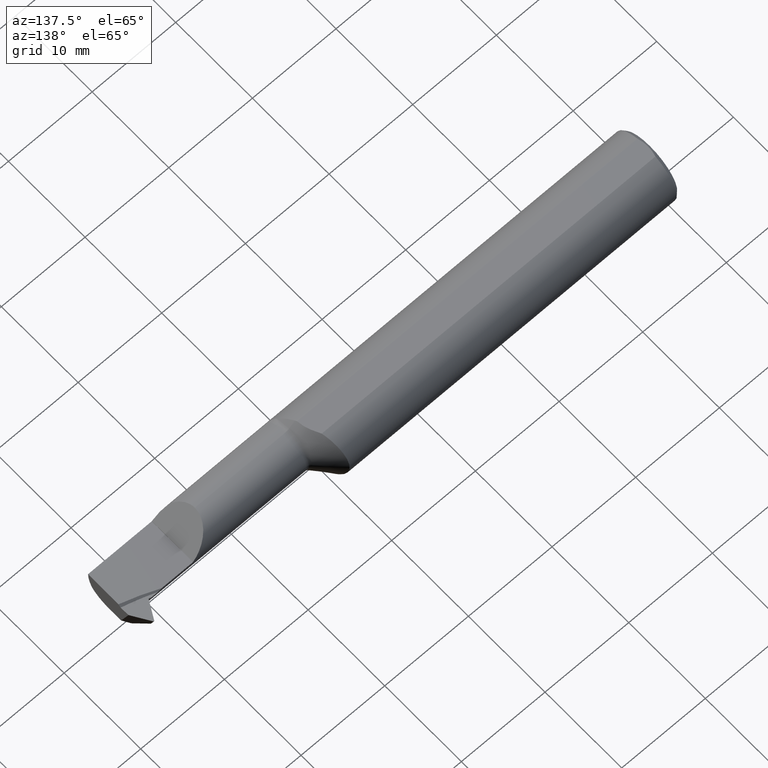
[diagram: clean part render]
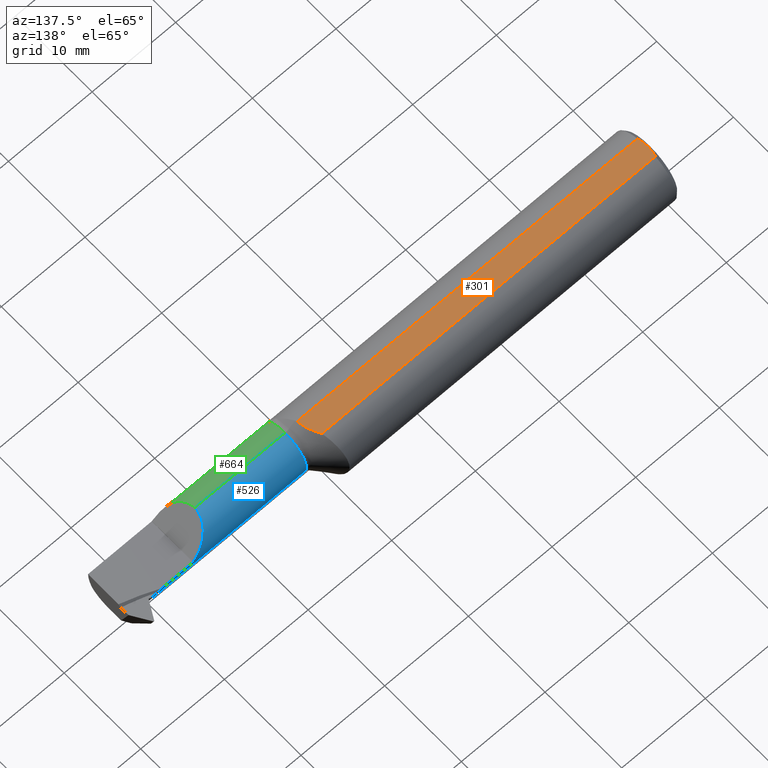
[diagram: same view with three faces highlighted in distinct colors, each labeled with its STEP entity id]
A machine part, auxiliary view with three faces highlighted in distinct colors.
Their STEP definitions:

[orange] entity #301 — the highlighted planar face has unit normal (-0, 0, -1).
#15 = LINE ( 'NONE', #335, #493 ) ;
#47 = CARTESIAN_POINT ( 'NONE',  ( 1.585731319860130828, 0.04622120725381386602, 0.1490999999999999270 ) ) ;
#49 = ORIENTED_EDGE ( 'NONE', *, *, #589, .T. ) ;
#68 = CARTESIAN_POINT ( 'NONE',  ( 0.01278288443379417376, 0.03873348115474874176, 0.1490999999999999270 ) ) ;
#79 = CARTESIAN_POINT ( 'NONE',  ( 0.01499999999999393485, -0.04622120725382292822, 0.1490999999999999270 ) ) ;
#80 = CARTESIAN_POINT ( 'NONE',  ( 1.611455283410027750, -0.01367641444778827133, 0.1490999999999999548 ) ) ;
#84 = CARTESIAN_POINT ( 'NONE',  ( 0.007999999999999125866, 4.455076319782333311E-17, 0.1490999999999999270 ) ) ;
#104 = B_SPLINE_CURVE_WITH_KNOTS ( 'NONE', 3,
 ( #1035, #559, #896, #884, #814, #79 ),
 .UNSPECIFIED., .F., .F.,
 ( 4, 2, 4 ),
 ( 0.004897592659350309685, 0.005485910453056662590, 0.006074228246763015496 ),
 .UNSPECIFIED. ) ;
#107 = ORIENTED_EDGE ( 'NONE', *, *, #296, .F. ) ;
#109 = ORIENTED_EDGE ( 'NONE', *, *, #171, .T. ) ;
#124 = VECTOR ( 'NONE', #621, 39.37007874015748143 ) ;
#149 = CARTESIAN_POINT ( 'NONE',  ( 0.007999999999999125866, 4.455076319782333311E-17, 0.1490999999999999270 ) ) ;
#153 = CARTESIAN_POINT ( 'NONE',  ( 1.593705498961929479, 0.03203370612900889591, 0.1490999999999999270 ) ) ;
#154 = VERTEX_POINT ( 'NONE', #802 ) ;
#159 = EDGE_CURVE ( 'NONE', #442, #481, #569, .T. ) ;
#167 = CARTESIAN_POINT ( 'NONE',  ( 1.609095431277676846, -0.005703213165482891658, 0.1490999999999999548 ) ) ;
#171 = EDGE_CURVE ( 'NONE', #154, #586, #712, .T. ) ;
#230 = CARTESIAN_POINT ( 'NONE',  ( 1.585731319860130828, 0.04622120725381386602, 0.1490999999999999270 ) ) ;
#235 = CARTESIAN_POINT ( 'NONE',  ( 0.01499999999999970281, 0.04622120725381385214, 0.1490999999999999270 ) ) ;
#296 = EDGE_CURVE ( 'NONE', #481, #506, #15, .T. ) ;
#301 = ADVANCED_FACE ( 'NONE', ( #439 ), #751, .F. ) ;
#330 = CARTESIAN_POINT ( 'NONE',  ( 0.01102802999246689508, 0.03114634426099329584, 0.1490999999999999825 ) ) ;
#335 = CARTESIAN_POINT ( 'NONE',  ( 2.500000000000000000, -0.04622120725381385214, 0.1490999999999999270 ) ) ;
#389 = CARTESIAN_POINT ( 'NONE',  ( 0.007999999999999469341, 0.007838945166257094838, 0.1490999999999999548 ) ) ;
#430 = CARTESIAN_POINT ( 'NONE',  ( 0.000000000000000000, 0.1749999999999999889, 0.1490999999999999270 ) ) ;
#439 = FACE_OUTER_BOUND ( 'NONE', #453, .T. ) ;
#442 = VERTEX_POINT ( 'NONE', #47 ) ;
#451 = LINE ( 'NONE', #785, #124 ) ;
#453 = EDGE_LOOP ( 'NONE', ( #565, #531, #109, #49, #107 ) ) ;
#456 = CARTESIAN_POINT ( 'NONE',  ( 1.616635871238674804, -0.04622120725381384521, 0.1490999999999999270 ) ) ;
#470 = CARTESIAN_POINT ( 'NONE',  ( 1.616149622418284082, -0.03804125154417743043, 0.1490999999999999548 ) ) ;
#473 = CARTESIAN_POINT ( 'NONE',  ( 0.01499999999999393485, -0.04622120725382292822, 0.1490999999999999270 ) ) ;
#475 = EDGE_CURVE ( 'NONE', #154, #442, #451, .T. ) ;
#481 = VERTEX_POINT ( 'NONE', #456 ) ;
#493 = VECTOR ( 'NONE', #842, 39.37007874015748143 ) ;
#506 = VERTEX_POINT ( 'NONE', #473 ) ;
#531 = ORIENTED_EDGE ( 'NONE', *, *, #475, .F. ) ;
#559 = CARTESIAN_POINT ( 'NONE',  ( 0.007999999999999455463, -0.007830403603065291818, 0.1490999999999999270 ) ) ;
#565 = ORIENTED_EDGE ( 'NONE', *, *, #159, .F. ) ;
#569 = B_SPLINE_CURVE_WITH_KNOTS ( 'NONE', 3,
 ( #230, #153, #975, #167, #80, #643, #470, #1046 ),
 .UNSPECIFIED., .F., .F.,
 ( 4, 2, 2, 4 ),
 ( 0.004170257919704614680, 0.005419282688077418052, 0.006043795072263819304, 0.006668307456450221424 ),
 .UNSPECIFIED. ) ;
#586 = VERTEX_POINT ( 'NONE', #84 ) ;
#589 = EDGE_CURVE ( 'NONE', #586, #506, #104, .T. ) ;
#592 = DIRECTION ( 'NONE',  ( -0.000000000000000000, 0.000000000000000000, -1.000000000000000000 ) ) ;
#621 = DIRECTION ( 'NONE',  ( 1.000000000000000000, 0.000000000000000000, 0.000000000000000000 ) ) ;
#643 = CARTESIAN_POINT ( 'NONE',  ( 1.614992327536548755, -0.02989759620680064456, 0.1490999999999999270 ) ) ;
#712 = B_SPLINE_CURVE_WITH_KNOTS ( 'NONE', 3,
 ( #235, #68, #330, #746, #389, #149 ),
 .UNSPECIFIED., .F., .F.,
 ( 4, 2, 4 ),
 ( 0.003719673573955530402, 0.004308633116652920043, 0.004897592659350309685 ),
 .UNSPECIFIED. ) ;
#746 = CARTESIAN_POINT ( 'NONE',  ( 0.008634235838431109783, 0.01573208929399682460, 0.1490999999999999270 ) ) ;
#751 = PLANE ( 'NONE',  #891 ) ;
#785 = CARTESIAN_POINT ( 'NONE',  ( 2.500000000000000000, 0.04622120725381385214, 0.1490999999999999270 ) ) ;
#802 = CARTESIAN_POINT ( 'NONE',  ( 0.01499999999999970281, 0.04622120725381385214, 0.1490999999999999270 ) ) ;
#814 = CARTESIAN_POINT ( 'NONE',  ( 0.01278044421364358738, -0.03872523995146043979, 0.1490999999999999548 ) ) ;
#842 = DIRECTION ( 'NONE',  ( -1.000000000000000000, -0.000000000000000000, -0.000000000000000000 ) ) ;
#884 = CARTESIAN_POINT ( 'NONE',  ( 0.01100253626952274640, -0.03102299601567367823, 0.1490999999999999270 ) ) ;
#891 = AXIS2_PLACEMENT_3D ( 'NONE', #430, #592, #994 ) ;
#896 = CARTESIAN_POINT ( 'NONE',  ( 0.008620033643014864480, -0.01559914152229296101, 0.1490999999999999825 ) ) ;
#975 = CARTESIAN_POINT ( 'NONE',  ( 1.600825235768599697, 0.01741984689341644077, 0.1490999999999998993 ) ) ;
#994 = DIRECTION ( 'NONE',  ( -1.000000000000000000, 0.000000000000000000, 0.000000000000000000 ) ) ;
#1035 = CARTESIAN_POINT ( 'NONE',  ( 0.007999999999999125866, 4.455076319782333311E-17, 0.1490999999999999270 ) ) ;
#1046 = CARTESIAN_POINT ( 'NONE',  ( 1.616635871238674804, -0.04622120725381384521, 0.1490999999999999270 ) ) ;

[blue] entity #526 — the highlighted cylindrical surface (edge-blend (fillet) strip) has radius 2.8194 mm, axis along (-1, -0, -0).
#1 = B_SPLINE_CURVE_WITH_KNOTS ( 'NONE', 3,
 ( #672, #110, #905, #284 ),
 .UNSPECIFIED., .F., .F.,
 ( 4, 4 ),
 ( 0.01329294191622623286, 0.01373583739923346821 ),
 .UNSPECIFIED. ) ;
#14 = CARTESIAN_POINT ( 'NONE',  ( 1.665355339059327200, -0.05509999999999982967, 0.1110000000000000292 ) ) ;
#23 = VECTOR ( 'NONE', #943, 39.37007874015748143 ) ;
#26 = CARTESIAN_POINT ( 'NONE',  ( 2.200000000000000178, 0.05590000000000017871, -6.429183357567478880E-17 ) ) ;
#35 = CARTESIAN_POINT ( 'NONE',  ( 2.200000000000000178, 0.05589635129138274122, 0.0009000000000000527760 ) ) ;
#57 = CARTESIAN_POINT ( 'NONE',  ( 2.135397084422194780, 0.05537252664900876170, 0.06550291557780467400 ) ) ;
#83 = EDGE_CURVE ( 'NONE', #837, #92, #524, .T. ) ;
#92 = VERTEX_POINT ( 'NONE', #121 ) ;
#110 = CARTESIAN_POINT ( 'NONE',  ( 2.354118992116098763, 0.05590000000000038688, -0.002306557227393740434 ) ) ;
#116 = EDGE_LOOP ( 'NONE', ( #263, #145, #676, #286, #466, #319, #511, #421, #236, #700, #962 ) ) ;
#121 = CARTESIAN_POINT ( 'NONE',  ( 2.392011247420416264, 0.04669892047817528202, -0.04424906540796296611 ) ) ;
#130 = CARTESIAN_POINT ( 'NONE',  ( 2.200000000000000178, -0.05509999999999982967, 0.000000000000000000 ) ) ;
#135 = CARTESIAN_POINT ( 'NONE',  ( 1.655000000000000249, 0.05569962540964207287, -0.006666559013692298016 ) ) ;
#141 = AXIS2_PLACEMENT_3D ( 'NONE', #646, #245, #969 ) ;
#145 = ORIENTED_EDGE ( 'NONE', *, *, #670, .T. ) ;
#173 = VECTOR ( 'NONE', #755, 39.37007874015748143 ) ;
#205 = CARTESIAN_POINT ( 'NONE',  ( 1.665355339059327200, -0.05509999999999982967, 0.000000000000000000 ) ) ;
#214 =( BOUNDED_CURVE ( )  B_SPLINE_CURVE ( 3, ( #715, #238, #229, #800 ),
 .UNSPECIFIED., .F., .F. ) 
 B_SPLINE_CURVE_WITH_KNOTS ( ( 4, 4 ),
 ( 3.324852225049197862, 4.485614858200198896 ),
 .UNSPECIFIED. ) 
 CURVE ( )  GEOMETRIC_REPRESENTATION_ITEM ( )  RATIONAL_B_SPLINE_CURVE ( ( 1.000000000000000000, 0.8908357456650484174, 0.8908357456650484174, 1.000000000000000000 ) ) 
 REPRESENTATION_ITEM ( '' )  );
#229 = CARTESIAN_POINT ( 'NONE',  ( 2.415503602610843625, 0.02854094621532835691, -0.08602310427151964312 ) ) ;
#236 = ORIENTED_EDGE ( 'NONE', *, *, #463, .T. ) ;
#238 = CARTESIAN_POINT ( 'NONE',  ( 2.418777902616022768, -0.009550221160754634661, -0.1110000000000000570 ) ) ;
#243 = VERTEX_POINT ( 'NONE', #554 ) ;
#245 = DIRECTION ( 'NONE',  ( -1.000000000000000000, -0.000000000000000000, -0.000000000000000000 ) ) ;
#256 = CIRCLE ( 'NONE', #856, 0.1110000000000000292 ) ;
#263 = ORIENTED_EDGE ( 'NONE', *, *, #570, .F. ) ;
#277 = CARTESIAN_POINT ( 'NONE',  ( 2.089899999999998759, -0.05509999999999982967, 0.1110000000000000292 ) ) ;
#284 = CARTESIAN_POINT ( 'NONE',  ( 2.364870255512066421, 0.05569962540964205899, -0.006666559013692374344 ) ) ;
#286 = ORIENTED_EDGE ( 'NONE', *, *, #851, .F. ) ;
#288 = CARTESIAN_POINT ( 'NONE',  ( 2.410890140113939317, 0.04669892047817530978, -0.04424906540796293836 ) ) ;
#294 = DIRECTION ( 'NONE',  ( 1.000000000000000000, 0.000000000000000000, 0.000000000000000000 ) ) ;
#297 = VERTEX_POINT ( 'NONE', #35 ) ;
#300 = DIRECTION ( 'NONE',  ( -1.000000000000000000, -0.000000000000000000, -0.000000000000000000 ) ) ;
#303 = LINE ( 'NONE', #537, #791 ) ;
#319 = ORIENTED_EDGE ( 'NONE', *, *, #420, .T. ) ;
#327 = VERTEX_POINT ( 'NONE', #26 ) ;
#343 = VERTEX_POINT ( 'NONE', #533 ) ;
#350 = EDGE_CURVE ( 'NONE', #243, #718, #256, .T. ) ;
#354 = DIRECTION ( 'NONE',  ( 0.000000000000000000, 0.000000000000000000, 1.000000000000000000 ) ) ;
#363 = EDGE_CURVE ( 'NONE', #327, #437, #779, .T. ) ;
#370 = DIRECTION ( 'NONE',  ( 1.000000000000000000, 0.000000000000000000, 0.000000000000000000 ) ) ;
#377 = CARTESIAN_POINT ( 'NONE',  ( 2.398976753261663486, 0.05569962540964209369, -0.006666559013692291077 ) ) ;
#394 = VECTOR ( 'NONE', #294, 39.37007874015748143 ) ;
#396 =( BOUNDED_CURVE ( )  B_SPLINE_CURVE ( 3, ( #277, #539, #57, #698 ),
 .UNSPECIFIED., .F., .F. ) 
 B_SPLINE_CURVE_WITH_KNOTS ( ( 4, 4 ),
 ( 0.000000000000000000, 1.562688129844407303 ),
 .UNSPECIFIED. ) 
 CURVE ( )  GEOMETRIC_REPRESENTATION_ITEM ( )  RATIONAL_B_SPLINE_CURVE ( ( 1.000000000000000000, 0.8066450953084864928, 0.8066450953084864928, 1.000000000000000000 ) ) 
 REPRESENTATION_ITEM ( '' )  );
#405 = FACE_OUTER_BOUND ( 'NONE', #116, .T. ) ;
#408 = CARTESIAN_POINT ( 'NONE',  ( 2.089899999999998759, -0.05509999999999982967, 0.1110000000000000292 ) ) ;
#413 = EDGE_CURVE ( 'NONE', #982, #297, #396, .T. ) ;
#420 = EDGE_CURVE ( 'NONE', #297, #327, #494, .T. ) ;
#421 = ORIENTED_EDGE ( 'NONE', *, *, #657, .T. ) ;
#435 = VERTEX_POINT ( 'NONE', #377 ) ;
#437 = VERTEX_POINT ( 'NONE', #858 ) ;
#463 = EDGE_CURVE ( 'NONE', #343, #435, #868, .T. ) ;
#466 = ORIENTED_EDGE ( 'NONE', *, *, #413, .T. ) ;
#479 = CARTESIAN_POINT ( 'NONE',  ( 2.396569062922643045, 0.05491800274302387208, -0.01965729358832224785 ) ) ;
#483 = CARTESIAN_POINT ( 'NONE',  ( 2.392011247420416264, 0.04669892047817528202, -0.04424906540796296611 ) ) ;
#494 = CIRCLE ( 'NONE', #874, 0.1110000000000000292 ) ;
#499 = VERTEX_POINT ( 'NONE', #1045 ) ;
#501 = CARTESIAN_POINT ( 'NONE',  ( 1.655000000000000249, -0.05509999999999980885, -0.1110000000000000292 ) ) ;
#511 = ORIENTED_EDGE ( 'NONE', *, *, #363, .T. ) ;
#524 = LINE ( 'NONE', #1026, #987 ) ;
#526 = ADVANCED_FACE ( 'NONE', ( #405 ), #879, .T. ) ;
#533 = CARTESIAN_POINT ( 'NONE',  ( 2.364870255512066421, 0.05569962540964205899, -0.006666559013692374344 ) ) ;
#537 = CARTESIAN_POINT ( 'NONE',  ( 1.655000000000000249, -0.05509999999999982967, 0.1110000000000000292 ) ) ;
#539 = CARTESIAN_POINT ( 'NONE',  ( 2.089899999999998759, 0.009505039226123366408, 0.1110000000000000431 ) ) ;
#554 = CARTESIAN_POINT ( 'NONE',  ( 1.665355339059327200, -0.05509999999999980885, -0.1110000000000000292 ) ) ;
#570 = EDGE_CURVE ( 'NONE', #499, #837, #214, .T. ) ;
#584 = EDGE_CURVE ( 'NONE', #92, #435, #916, .T. ) ;
#614 = DIRECTION ( 'NONE',  ( 0.000000000000000000, 0.000000000000000000, 1.000000000000000000 ) ) ;
#626 = DIRECTION ( 'NONE',  ( -1.000000000000000000, -0.000000000000000000, -0.000000000000000000 ) ) ;
#646 = CARTESIAN_POINT ( 'NONE',  ( 1.655000000000000249, -0.05509999999999982967, 0.000000000000000000 ) ) ;
#657 = EDGE_CURVE ( 'NONE', #437, #343, #1, .T. ) ;
#670 = EDGE_CURVE ( 'NONE', #499, #243, #840, .T. ) ;
#672 = CARTESIAN_POINT ( 'NONE',  ( 2.348800091824888359, 0.05590000000000024810, 2.743838138456355670E-16 ) ) ;
#676 = ORIENTED_EDGE ( 'NONE', *, *, #350, .T. ) ;
#698 = CARTESIAN_POINT ( 'NONE',  ( 2.200000000000000178, 0.05589635129138274122, 0.0009000000000000527760 ) ) ;
#700 = ORIENTED_EDGE ( 'NONE', *, *, #584, .F. ) ;
#715 = CARTESIAN_POINT ( 'NONE',  ( 2.419640730573871856, -0.05509999999999984355, -0.1109999999999999737 ) ) ;
#718 = VERTEX_POINT ( 'NONE', #14 ) ;
#755 = DIRECTION ( 'NONE',  ( -1.000000000000000000, -0.000000000000000000, -0.000000000000000000 ) ) ;
#779 = LINE ( 'NONE', #936, #394 ) ;
#791 = VECTOR ( 'NONE', #959, 39.37007874015748143 ) ;
#800 = CARTESIAN_POINT ( 'NONE',  ( 2.410890140113939317, 0.04669892047817530978, -0.04424906540796293836 ) ) ;
#818 = CARTESIAN_POINT ( 'NONE',  ( 2.398976753261663486, 0.05569962540964209369, -0.006666559013692291077 ) ) ;
#837 = VERTEX_POINT ( 'NONE', #288 ) ;
#840 = LINE ( 'NONE', #501, #173 ) ;
#851 = EDGE_CURVE ( 'NONE', #982, #718, #303, .T. ) ;
#856 = AXIS2_PLACEMENT_3D ( 'NONE', #205, #370, #614 ) ;
#858 = CARTESIAN_POINT ( 'NONE',  ( 2.348800091824888359, 0.05590000000000024810, 2.743838138456355670E-16 ) ) ;
#868 = LINE ( 'NONE', #135, #23 ) ;
#874 = AXIS2_PLACEMENT_3D ( 'NONE', #130, #626, #354 ) ;
#879 = CYLINDRICAL_SURFACE ( 'NONE', #141, 0.1110000000000000292 ) ;
#889 = CARTESIAN_POINT ( 'NONE',  ( 2.394223351265098998, 0.05188691512856393601, -0.03231362112260029174 ) ) ;
#905 = CARTESIAN_POINT ( 'NONE',  ( 2.359477086826997194, 0.05582843386859366597, -0.004525735093569007057 ) ) ;
#916 =( BOUNDED_CURVE ( )  B_SPLINE_CURVE ( 3, ( #483, #889, #479, #818 ),
 .UNSPECIFIED., .F., .F. ) 
 B_SPLINE_CURVE_WITH_KNOTS ( ( 4, 4 ),
 ( 1.160762633150994816, 1.510701071380387894 ),
 .UNSPECIFIED. ) 
 CURVE ( )  GEOMETRIC_REPRESENTATION_ITEM ( )  RATIONAL_B_SPLINE_CURVE ( ( 1.000000000000000000, 0.9898212650940335644, 0.9898212650940335644, 1.000000000000000000 ) ) 
 REPRESENTATION_ITEM ( '' )  );
#936 = CARTESIAN_POINT ( 'NONE',  ( 1.655000000000000249, 0.05590000000000019953, -6.429183357567480113E-17 ) ) ;
#943 = DIRECTION ( 'NONE',  ( 1.000000000000000000, 0.000000000000000000, 0.000000000000000000 ) ) ;
#959 = DIRECTION ( 'NONE',  ( -1.000000000000000000, -0.000000000000000000, -0.000000000000000000 ) ) ;
#962 = ORIENTED_EDGE ( 'NONE', *, *, #83, .F. ) ;
#969 = DIRECTION ( 'NONE',  ( 0.000000000000000000, 0.000000000000000000, 1.000000000000000000 ) ) ;
#982 = VERTEX_POINT ( 'NONE', #408 ) ;
#987 = VECTOR ( 'NONE', #300, 39.37007874015748143 ) ;
#1026 = CARTESIAN_POINT ( 'NONE',  ( 1.655000000000000249, 0.04669892047817530284, -0.04424906540796293836 ) ) ;
#1045 = CARTESIAN_POINT ( 'NONE',  ( 2.419640730573871856, -0.05509999999999984355, -0.1109999999999999737 ) ) ;

[green] entity #664 — the highlighted cylindrical surface (edge-blend (fillet) strip) has radius 2.8194 mm, axis along (-1, -0, -0).
#4 = CARTESIAN_POINT ( 'NONE',  ( 1.665355339059327200, -0.05509999999999982967, 0.000000000000000000 ) ) ;
#5 = CIRCLE ( 'NONE', #741, 0.1110000000000000292 ) ;
#14 = CARTESIAN_POINT ( 'NONE',  ( 1.665355339059327200, -0.05509999999999982967, 0.1110000000000000292 ) ) ;
#29 = VERTEX_POINT ( 'NONE', #610 ) ;
#46 = VERTEX_POINT ( 'NONE', #143 ) ;
#91 = AXIS2_PLACEMENT_3D ( 'NONE', #764, #94, #835 ) ;
#94 = DIRECTION ( 'NONE',  ( -1.000000000000000000, -0.000000000000000000, -0.000000000000000000 ) ) ;
#132 = EDGE_CURVE ( 'NONE', #718, #29, #5, .T. ) ;
#143 = CARTESIAN_POINT ( 'NONE',  ( 2.125827139386172515, -0.1368622504537206908, 0.07507286061382652254 ) ) ;
#160 = ORIENTED_EDGE ( 'NONE', *, *, #851, .T. ) ;
#161 = DIRECTION ( 'NONE',  ( 1.000000000000000000, 0.000000000000000000, 0.000000000000000000 ) ) ;
#278 = ORIENTED_EDGE ( 'NONE', *, *, #132, .T. ) ;
#303 = LINE ( 'NONE', #537, #791 ) ;
#331 = EDGE_CURVE ( 'NONE', #46, #982, #366, .T. ) ;
#339 = EDGE_LOOP ( 'NONE', ( #594, #160, #278, #607 ) ) ;
#341 = CARTESIAN_POINT ( 'NONE',  ( 2.125827139386172515, -0.1368622504537206908, 0.07507286061382652254 ) ) ;
#366 =( BOUNDED_CURVE ( )  B_SPLINE_CURVE ( 3, ( #341, #682, #424, #673 ),
 .UNSPECIFIED., .F., .F. ) 
 B_SPLINE_CURVE_WITH_KNOTS ( ( 4, 4 ),
 ( 5.455160606174178639, 6.283185307179586232 ),
 .UNSPECIFIED. ) 
 CURVE ( )  GEOMETRIC_REPRESENTATION_ITEM ( )  RATIONAL_B_SPLINE_CURVE ( ( 1.000000000000000000, 0.9436760562907879901, 0.9436760562907879901, 1.000000000000000000 ) ) 
 REPRESENTATION_ITEM ( '' )  );
#408 = CARTESIAN_POINT ( 'NONE',  ( 2.089899999999998759, -0.05509999999999982967, 0.1110000000000000292 ) ) ;
#424 = CARTESIAN_POINT ( 'NONE',  ( 2.089899999999998759, -0.08664595039291325684, 0.1110000000000000292 ) ) ;
#515 = VECTOR ( 'NONE', #161, 39.37007874015748143 ) ;
#537 = CARTESIAN_POINT ( 'NONE',  ( 1.655000000000000249, -0.05509999999999982967, 0.1110000000000000292 ) ) ;
#574 = DIRECTION ( 'NONE',  ( 1.000000000000000000, 0.000000000000000000, 0.000000000000000000 ) ) ;
#594 = ORIENTED_EDGE ( 'NONE', *, *, #331, .T. ) ;
#607 = ORIENTED_EDGE ( 'NONE', *, *, #976, .T. ) ;
#610 = CARTESIAN_POINT ( 'NONE',  ( 1.665355339059327200, -0.1368622504537206630, 0.07507286061382655029 ) ) ;
#664 = ADVANCED_FACE ( 'NONE', ( #760 ), #1012, .T. ) ;
#673 = CARTESIAN_POINT ( 'NONE',  ( 2.089899999999998759, -0.05509999999999982967, 0.1110000000000000292 ) ) ;
#682 = CARTESIAN_POINT ( 'NONE',  ( 2.102590491667018391, -0.1155267122845506506, 0.09830950833298003622 ) ) ;
#718 = VERTEX_POINT ( 'NONE', #14 ) ;
#730 = CARTESIAN_POINT ( 'NONE',  ( 2.028999999999999915, -0.1368622504537206630, 0.07507286061382655029 ) ) ;
#741 = AXIS2_PLACEMENT_3D ( 'NONE', #4, #574, #823 ) ;
#749 = LINE ( 'NONE', #730, #515 ) ;
#760 = FACE_OUTER_BOUND ( 'NONE', #339, .T. ) ;
#764 = CARTESIAN_POINT ( 'NONE',  ( 1.655000000000000249, -0.05509999999999982967, 0.000000000000000000 ) ) ;
#791 = VECTOR ( 'NONE', #959, 39.37007874015748143 ) ;
#823 = DIRECTION ( 'NONE',  ( 0.000000000000000000, 0.000000000000000000, 1.000000000000000000 ) ) ;
#835 = DIRECTION ( 'NONE',  ( 0.000000000000000000, 0.000000000000000000, 1.000000000000000000 ) ) ;
#851 = EDGE_CURVE ( 'NONE', #982, #718, #303, .T. ) ;
#959 = DIRECTION ( 'NONE',  ( -1.000000000000000000, -0.000000000000000000, -0.000000000000000000 ) ) ;
#976 = EDGE_CURVE ( 'NONE', #29, #46, #749, .T. ) ;
#982 = VERTEX_POINT ( 'NONE', #408 ) ;
#1012 = CYLINDRICAL_SURFACE ( 'NONE', #91, 0.1110000000000000292 ) ;